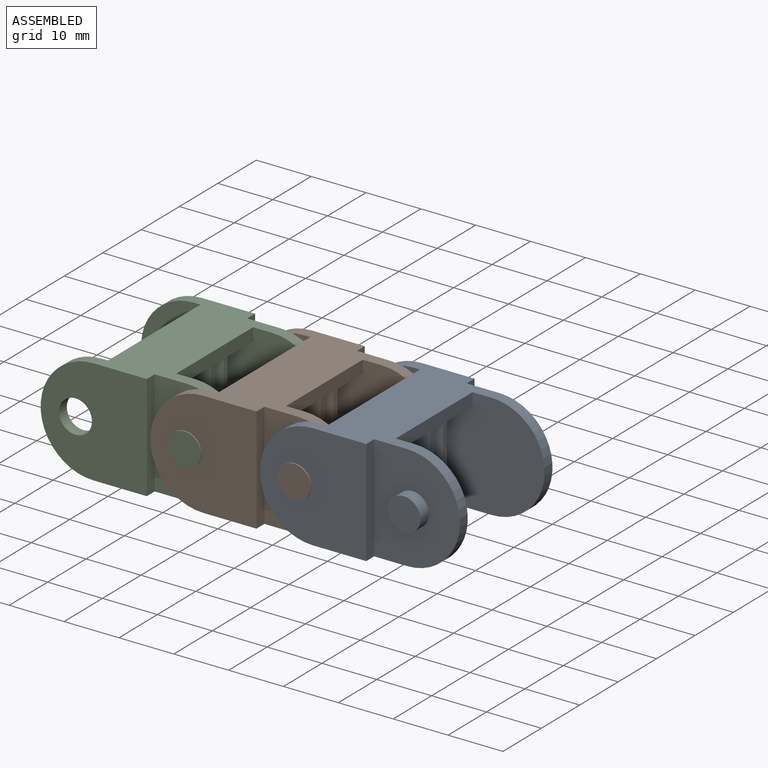
[diagram: assembled view]
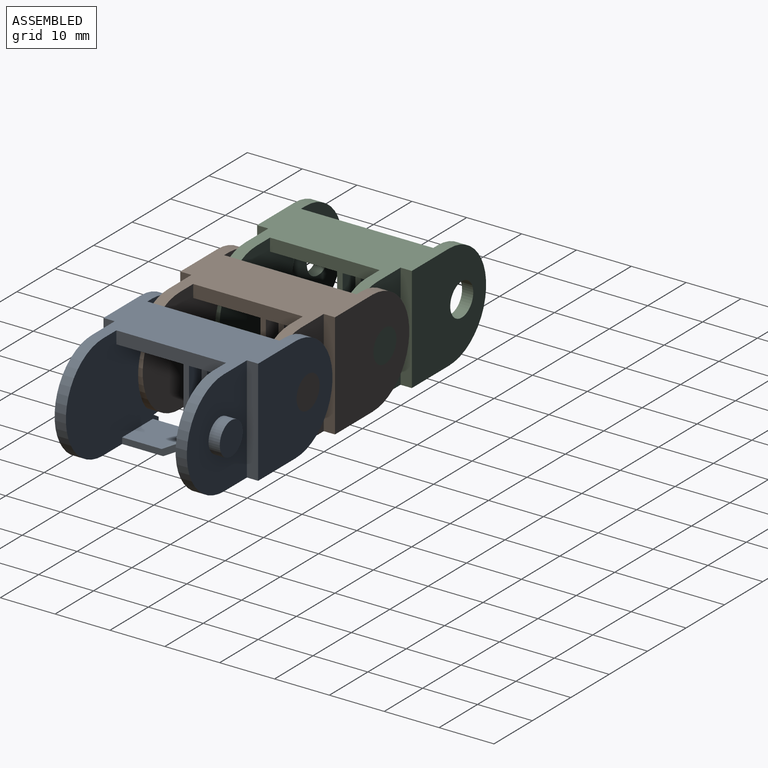
[diagram: assembled view, second angle]
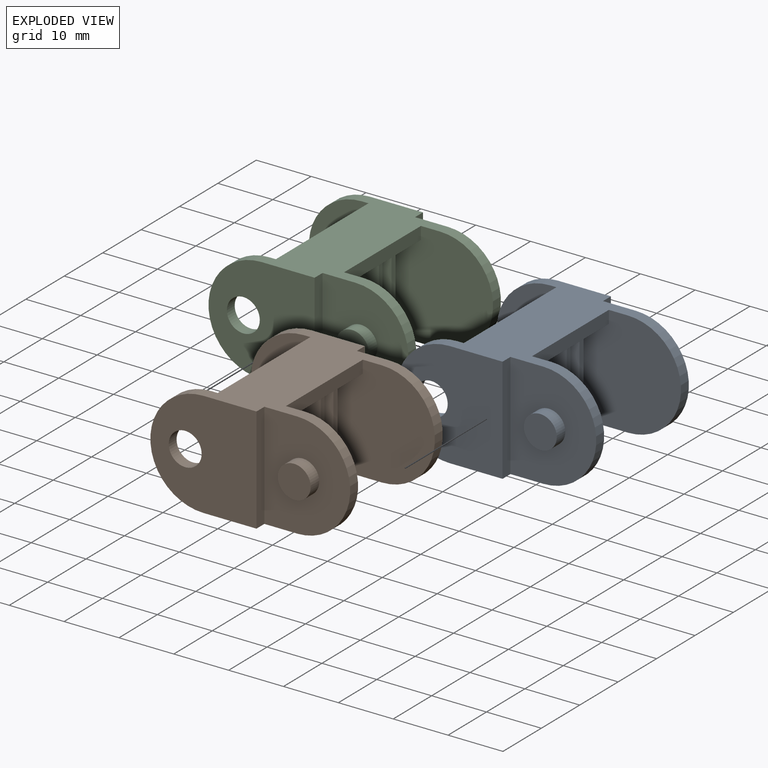
[diagram: exploded view]
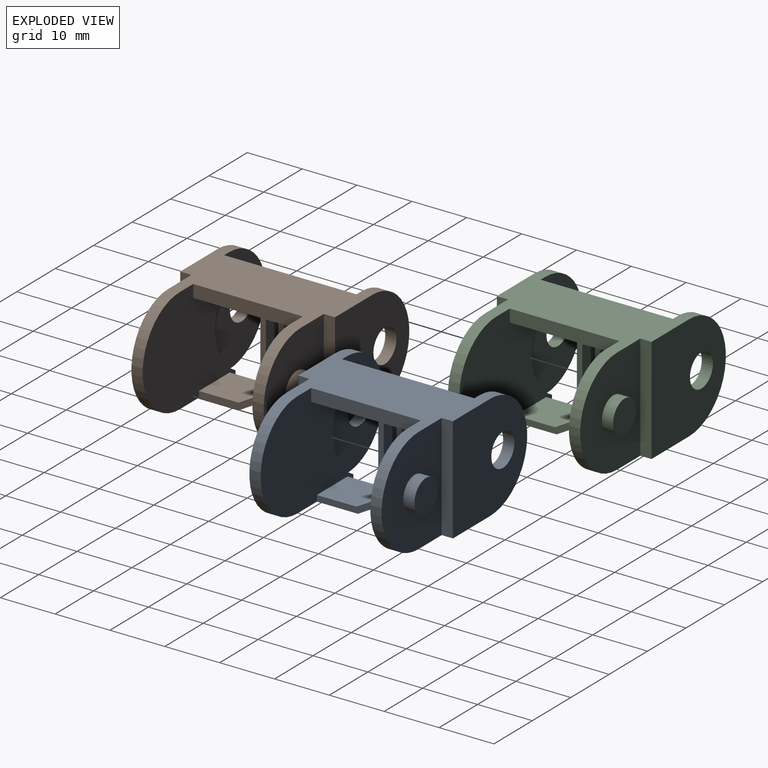
[diagram: exploded view, second angle]
ASSEMBLY  parts=3 mates=2
PART A: 64 faces, bbox 35x28.4x19.3 mm
  f0: plane 8x2mm, normal (0,0,1), area 16mm2, adj f16,f17,f25,f56
  f1: cylinder r=9.65mm len=19.3mm, axis (0,-1,0), area 61.8mm2, adj f3,f6,f14,f43
  f2: cylinder r=3mm len=6mm, axis (0,1,0), area 38.5mm2, adj f14,f43
  f3: plane 28.2x15.7mm, normal (0,0,-1), area 319.2mm2, adj f1,f5,f7,f12,f13,f14,f15,f18
  f4: plane 15.7x11.6mm, normal (0,0,1), area 109.6mm2, adj f5,f7,f13,f15,f16,f17,f27,f29
  f5: plane 24.15x19.3mm, normal (0,1,0), area 326.7mm2, adj f3,f4,f7,f8,f16,f17,f18,f19
  f6: plane 15.7x11.6mm, normal (0,0,1), area 109.6mm2, adj f1,f9,f10,f12,f14,f21,f22,f34
  f7: cylinder r=9.65mm len=19.3mm, axis (0,-1,0), area 62.1mm2, adj f3,f4,f5,f31
  f8: plane 8x7.21mm, normal (0,0,-1), area 57.6mm2, adj f5,f16,f17,f23
  f9: plane 7.52x1.1mm, normal (-1,0,0), area 8.3mm2, adj f6,f11,f21,f22
  f10: plane 7.52x1.1mm, normal (1,0,0), area 8.3mm2, adj f6,f11,f21,f22
  f11: plane 8x7.52mm, normal (0,0,-1), area 60.2mm2, adj f9,f10,f21,f22
  f12: cylinder r=9.65mm len=19.3mm, axis (0,-1,0), area 62.1mm2, adj f3,f6,f21,f35
  f13: cylinder r=9.65mm len=19.3mm, axis (0,-1,0), area 61.8mm2, adj f3,f4,f15,f39
  f14: plane 19.35x19.3mm, normal (0,1,0), area 305.2mm2, adj f1,f2,f3,f6,f34
  f15: plane 19.35x19.3mm, normal (0,-1,0), area 305.2mm2, adj f3,f4,f13,f28,f29
  f16: plane 15.5x3.4mm, normal (-1,0,0), area 18.6mm2, adj f0,f4,f5,f8,f23,f24,f25,f26
  f17: plane 15.5x3.4mm, normal (1,0,0), area 18.6mm2, adj f0,f4,f5,f8,f23,f24,f25,f26
  f18: plane 20x2.3mm, normal (-1,0,0), area 46mm2, adj f3,f5,f19,f21
  f19: plane 20x11mm, normal (0,0,1), area 204mm2, adj f5,f18,f20,f21,f40,f44,f45,f47
  f20: plane 24.12x2.3mm, normal (1,0,0), area 49.7mm2, adj f3,f19,f38,f39,f40,f42,f43,f44
  f21: plane 24.15x19.3mm, normal (0,-1,0), area 326.7mm2, adj f3,f6,f9,f10,f11,f12,f18,f19
  f22: plane 8x1.1mm, normal (0,-1,0.02), area 8.8mm2, adj f6,f9,f10,f11
  f23: plane 8x3.98mm, normal (0,-0.5,-0.87), area 36.8mm2, adj f8,f16,f17,f24
  f24: plane 8x4.31mm, normal (0,0,-1), area 34.5mm2, adj f16,f17,f23,f25
  f25: plane 8x1.09mm, normal (0,1,0), area 8.7mm2, adj f0,f16,f17,f24
  f26: plane 8x0.99mm, normal (0,0.02,1), area 7.9mm2, adj f16,f17,f27,f57
  f27: plane 8x3.97mm, normal (0,0.5,0.87), area 36.7mm2, adj f4,f16,f17,f26
  f28: cylinder r=3mm len=6mm, axis (0,1,0), area 38.5mm2, adj f15,f39
  f29: plane 19.3x2.05mm, normal (-1,0,0), area 39.6mm2, adj f3,f4,f15,f31
  f30: cylinder r=3mm len=6mm, axis (0,1,0), area 41.9mm2, adj f31,f32
  f31: plane 19.3x15.65mm, normal (0,-1,0), area 233.8mm2, adj f3,f4,f7,f29,f30
  f32: plane 6x6mm, normal (0,-1,0.02), area 28.3mm2, adj f30
  f33: cylinder r=3mm len=6mm, axis (0,1,0), area 38.6mm2, adj f35,f36
  f34: plane 19.3x2.05mm, normal (-1,0,0), area 39.6mm2, adj f3,f6,f14,f35
  f35: plane 19.3x15.65mm, normal (0,1,0), area 233.8mm2, adj f3,f6,f12,f33,f34
  f36: plane 6x6mm, normal (0,1,0), area 28.3mm2, adj f33
  f37: plane 2.06x0.89mm, normal (1,0,0), area 1.8mm2, adj f4,f5,f38,f39
  f38: cylinder r=9.85mm len=17.52mm, axis (0,1,0), area 44.5mm2, adj f5,f20,f37,f39,f40
  f39: plane 19.3x16.2mm, normal (0,1,0), area 208.1mm2, adj f3,f4,f13,f20,f28,f37,f38
  f40: plane 2.06x1.41mm, normal (0,-1,0), area 1.6mm2, adj f19,f20,f38
  f41: plane 2.06x0.89mm, normal (1,0,0), area 1.8mm2, adj f6,f21,f42,f43
  f42: cylinder r=9.85mm len=17.52mm, axis (0,-1,0), area 44.5mm2, adj f20,f21,f41,f43,f44
  f43: plane 19.3x16.2mm, normal (0,-1,0), area 208.1mm2, adj f1,f2,f3,f6,f20,f41,f42
  f44: plane 2.06x1.41mm, normal (0,1,0), area 1.6mm2, adj f19,f20,f42
  f45: plane 13.51x1mm, normal (1,0,0), area 13.3mm2, adj f19,f46,f48,f49,f60,f61
  f46: plane 8x0.08mm, normal (0,0.02,1), area 0.7mm2, adj f45,f47,f60,f61
  f47: plane 13.51x1mm, normal (-1,0,0), area 13.3mm2, adj f19,f46,f48,f49,f60,f61
  f48: plane 13.06x8mm, normal (0,-1,0), area 104.5mm2, adj f19,f45,f47,f60
  f49: plane 13.06x8mm, normal (0,1,0), area 104.4mm2, adj f19,f45,f47,f61
  f50: plane 13.46x1mm, normal (-1,0,0), area 13.2mm2, adj f19,f51,f53,f54,f62,f63
  f51: plane 8x0.08mm, normal (0,0.02,1), area 0.7mm2, adj f50,f52,f62,f63
  f52: plane 13.46x1mm, normal (1,0,0), area 13.2mm2, adj f19,f51,f53,f54,f62,f63
  f53: plane 13x8mm, normal (0,1,0), area 104mm2, adj f19,f50,f52,f63
  f54: plane 13x8mm, normal (0,-1,0), area 104mm2, adj f19,f50,f52,f62
  f55: plane 8x0.11mm, normal (0,0.02,1), area 0.9mm2, adj f16,f17,f58,f59
  f56: plane 8x0.63mm, normal (0,1,0), area 5.1mm2, adj f0,f16,f17,f59
  f57: plane 8x0.64mm, normal (0,-1,0.02), area 5.1mm2, adj f16,f17,f26,f58
  f58: plane 8x0.47mm, normal (0,-0.69,0.72), area 5.2mm2, adj f16,f17,f55,f57
  f59: plane 8x0.46mm, normal (0,0.71,0.7), area 5.1mm2, adj f16,f17,f55,f56
  f60: plane 8x0.47mm, normal (0,-0.7,0.71), area 5.2mm2, adj f45,f46,f47,f48
  f61: plane 8x0.46mm, normal (0,0.71,0.7), area 5.1mm2, adj f45,f46,f47,f49
  f62: plane 8x0.47mm, normal (0,-0.7,0.71), area 5.2mm2, adj f50,f51,f52,f54
  f63: plane 8x0.46mm, normal (0,0.71,0.7), area 5.1mm2, adj f50,f51,f52,f53
PART B: same geometry as A
PART C: same geometry as A
PLACE A rot(axis=(0,1,0),180deg) t=(-6.76,-5.03,-1.7)mm
PLACE B rot(axis=(0,1,0),180deg) t=(-26.76,-5.03,-1.7)mm
PLACE C rot(axis=(0,-1,0),180deg) t=(-46.76,-5.03,-1.7)mm
MATE revolute A.f2 <-> B.f30  axis (0,1,0) through (-26.76,9.38,-1.83)mm
MATE revolute C.f30 <-> B.f2  axis (0,1,0) through (-46.76,9.38,-1.83)mm
